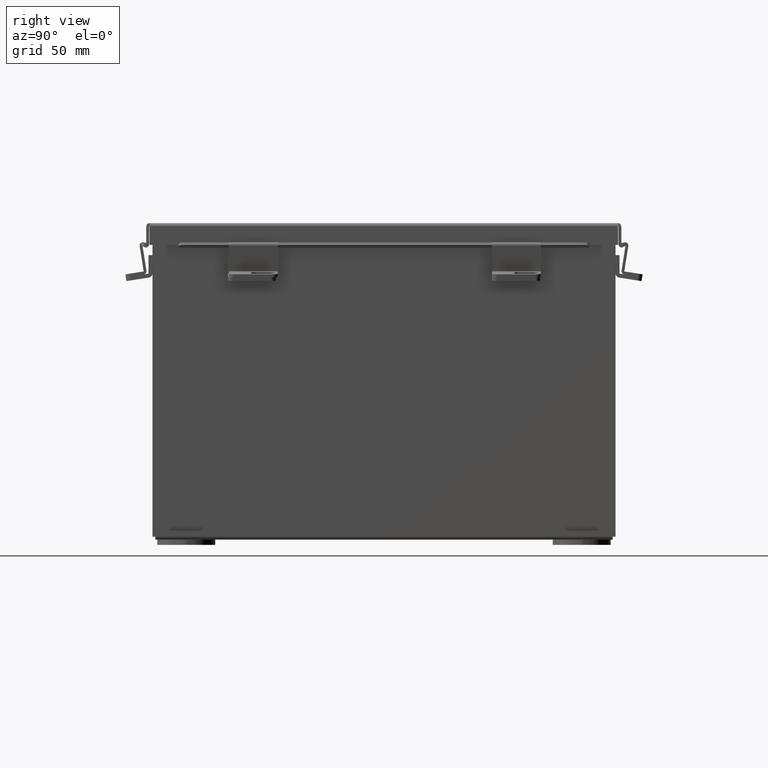
[diagram: clean part render]
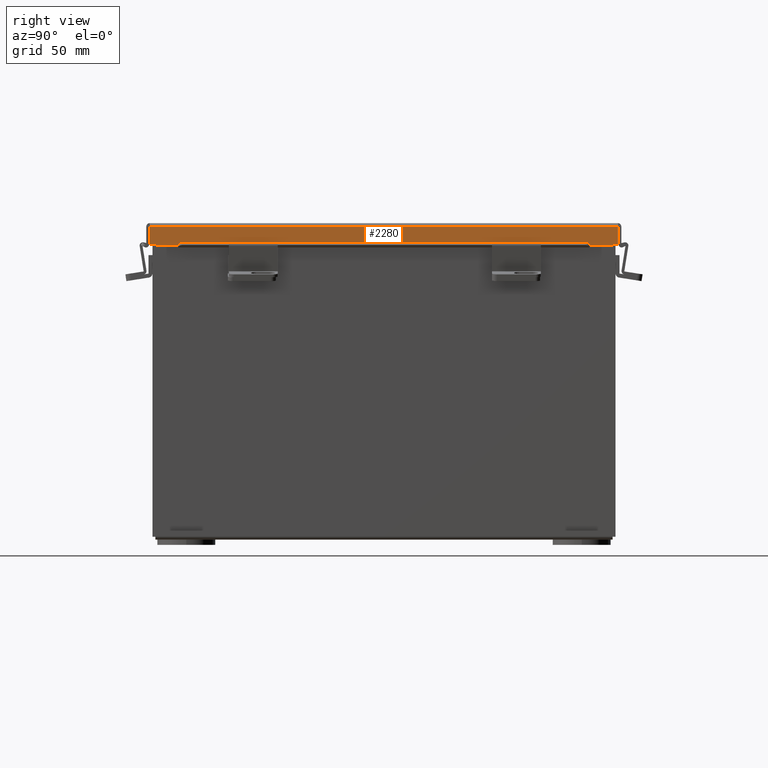
[diagram: same view with one face highlighted and labeled with its STEP entity id]
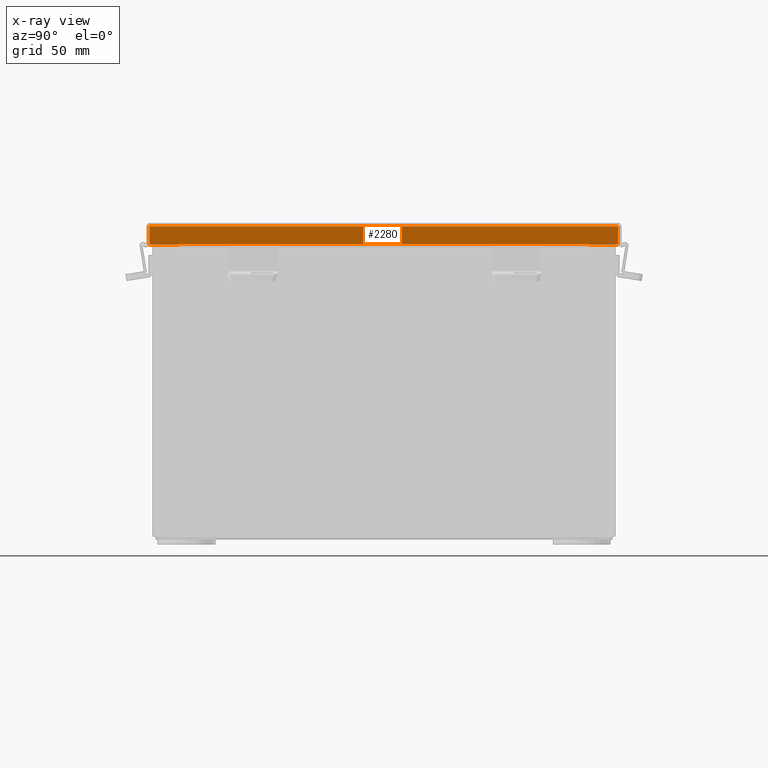
[diagram: x-ray of the same camera — body ghosted, the highlighted face saturated]
A machine part, right view. The second image highlights one B-rep face of the part: STEP entity #2280.
The next image is the same camera in x-ray: the body ghosted, the highlighted face saturated — about 0% of this face is hidden behind the body in this view.
In plain terms, the highlighted planar face has unit normal (-1, 0, -0).
Its self-contained STEP definition (entity closure, byte-faithful):
#276 = VECTOR ( 'NONE', #2500, 39.37007874015748100 ) ;
#544 = ORIENTED_EDGE ( 'NONE', *, *, #10643, .F. ) ;
#579 = ORIENTED_EDGE ( 'NONE', *, *, #3419, .T. ) ;
#637 = CARTESIAN_POINT ( 'NONE',  ( -4.156250000000024000, 5.324478932188134700, 0.4717115427318799800 ) ) ;
#868 = VECTOR ( 'NONE', #9737, 39.37007874015748100 ) ;
#922 = CARTESIAN_POINT ( 'NONE',  ( -4.156250000000023100, 5.324478932188134700, 0.4873000000000000100 ) ) ;
#1044 = DIRECTION ( 'NONE',  ( -1.102734587254376400E-030, 1.000000000000000000, -7.543482406175925400E-030 ) ) ;
#1649 = LINE ( 'NONE', #11438, #15196 ) ;
#1718 = CARTESIAN_POINT ( 'NONE',  ( -4.156250000000023100, 5.324478932188133000, 0.4717115427318799800 ) ) ;
#2280 = ADVANCED_FACE ( 'NONE', ( #14459 ), #9787, .F. ) ;
#2324 = LINE ( 'NONE', #13717, #8433 ) ;
#2500 = DIRECTION ( 'NONE',  ( -1.183291357831513000E-030, -7.617438116040364400E-030, 1.000000000000000000 ) ) ;
#2511 = CARTESIAN_POINT ( 'NONE',  ( -4.156250000000023100, -6.074478932188137400, 0.4873000000000000100 ) ) ;
#3273 = ORIENTED_EDGE ( 'NONE', *, *, #4109, .F. ) ;
#3360 = EDGE_CURVE ( 'NONE', #13347, #14325, #6181, .T. ) ;
#3419 = EDGE_CURVE ( 'NONE', #15134, #8571, #8279, .T. ) ;
#3478 = VECTOR ( 'NONE', #10448, 39.37007874015748100 ) ;
#3496 = CARTESIAN_POINT ( 'NONE',  ( -4.156250000000023100, 0.0000000000000000000, 0.4873000000000000100 ) ) ;
#4109 = EDGE_CURVE ( 'NONE', #15501, #7817, #9226, .T. ) ;
#4117 = ORIENTED_EDGE ( 'NONE', *, *, #11650, .T. ) ;
#4491 = LINE ( 'NONE', #10921, #868 ) ;
#4648 = VECTOR ( 'NONE', #8112, 39.37007874015748100 ) ;
#5142 = DIRECTION ( 'NONE',  ( 3.363654414526080900E-015, 7.617438116040365800E-030, -1.000000000000000000 ) ) ;
#5253 = LINE ( 'NONE', #3496, #8119 ) ;
#5665 = DIRECTION ( 'NONE',  ( -1.102734587254376400E-030, 1.000000000000000000, -7.543482406175925400E-030 ) ) ;
#5742 = ORIENTED_EDGE ( 'NONE', *, *, #11724, .F. ) ;
#5998 = LINE ( 'NONE', #9829, #276 ) ;
#6181 = LINE ( 'NONE', #14568, #9059 ) ;
#6676 = DIRECTION ( 'NONE',  ( 1.000000000000000000, -8.500126503461304400E-031, 3.363654414526080900E-015 ) ) ;
#7703 = CARTESIAN_POINT ( 'NONE',  ( -4.156250000000021300, 6.074478932188134700, 0.01300000000000010700 ) ) ;
#7817 = VERTEX_POINT ( 'NONE', #14299 ) ;
#8049 = EDGE_CURVE ( 'NONE', #7817, #12084, #5998, .T. ) ;
#8112 = DIRECTION ( 'NONE',  ( -3.363654414526080900E-015, -7.617438116040364400E-030, 1.000000000000000000 ) ) ;
#8119 = VECTOR ( 'NONE', #1044, 39.37007874015748100 ) ;
#8279 = LINE ( 'NONE', #12318, #4648 ) ;
#8414 = EDGE_LOOP ( 'NONE', ( #544, #9908, #10225, #5742, #579, #4117, #9176, #3273 ) ) ;
#8433 = VECTOR ( 'NONE', #10071, 39.37007874015748100 ) ;
#8571 = VERTEX_POINT ( 'NONE', #2511 ) ;
#9059 = VECTOR ( 'NONE', #5665, 39.37007874015748100 ) ;
#9061 = AXIS2_PLACEMENT_3D ( 'NONE', #10913, #6676, #5142 ) ;
#9082 = EDGE_CURVE ( 'NONE', #15446, #14325, #2324, .T. ) ;
#9176 = ORIENTED_EDGE ( 'NONE', *, *, #8049, .F. ) ;
#9226 = LINE ( 'NONE', #637, #3478 ) ;
#9737 = DIRECTION ( 'NONE',  ( -7.504135740648840900E-031, 1.000000000000000000, -4.437519583617875000E-017 ) ) ;
#9787 = PLANE ( 'NONE',  #9061 ) ;
#9829 = CARTESIAN_POINT ( 'NONE',  ( -4.156250000000024000, -5.324478932188136500, 0.4717115427318799800 ) ) ;
#9908 = ORIENTED_EDGE ( 'NONE', *, *, #3360, .T. ) ;
#10071 = DIRECTION ( 'NONE',  ( -3.363654414526080900E-015, -7.617438116040364400E-030, 1.000000000000000000 ) ) ;
#10225 = ORIENTED_EDGE ( 'NONE', *, *, #9082, .F. ) ;
#10448 = DIRECTION ( 'NONE',  ( 1.102734587254376400E-030, -1.000000000000000000, 7.543482406175925400E-030 ) ) ;
#10643 = EDGE_CURVE ( 'NONE', #13347, #15501, #1649, .T. ) ;
#10913 = CARTESIAN_POINT ( 'NONE',  ( -4.156250000000021300, 0.0000000000000000000, -1.420560956705417000E-014 ) ) ;
#10921 = CARTESIAN_POINT ( 'NONE',  ( -4.156250000000021300, 6.156249999999997300, 0.01300000000000010700 ) ) ;
#11438 = CARTESIAN_POINT ( 'NONE',  ( -4.156250000000024000, 5.324478932188134700, 0.4873000000000000100 ) ) ;
#11650 = EDGE_CURVE ( 'NONE', #8571, #12084, #5253, .T. ) ;
#11724 = EDGE_CURVE ( 'NONE', #15134, #15446, #4491, .T. ) ;
#12084 = VERTEX_POINT ( 'NONE', #15236 ) ;
#12318 = CARTESIAN_POINT ( 'NONE',  ( -4.156250000000021300, -6.074478932188137400, -1.420560956705417000E-014 ) ) ;
#13275 = CARTESIAN_POINT ( 'NONE',  ( -4.156250000000021300, -6.074478932188137400, 0.01300000000000010700 ) ) ;
#13347 = VERTEX_POINT ( 'NONE', #922 ) ;
#13717 = CARTESIAN_POINT ( 'NONE',  ( -4.156250000000021300, 6.074478932188134700, 0.0000000000000000000 ) ) ;
#14299 = CARTESIAN_POINT ( 'NONE',  ( -4.156250000000023100, -5.324478932188136500, 0.4717115427318799800 ) ) ;
#14325 = VERTEX_POINT ( 'NONE', #14937 ) ;
#14459 = FACE_OUTER_BOUND ( 'NONE', #8414, .T. ) ;
#14568 = CARTESIAN_POINT ( 'NONE',  ( -4.156250000000023100, 0.0000000000000000000, 0.4873000000000000100 ) ) ;
#14937 = CARTESIAN_POINT ( 'NONE',  ( -4.156250000000023100, 6.074478932188134700, 0.4873000000000000100 ) ) ;
#15052 = DIRECTION ( 'NONE',  ( 3.504962610060539100E-014, -7.009925220121056800E-014, -1.000000000000000000 ) ) ;
#15134 = VERTEX_POINT ( 'NONE', #13275 ) ;
#15196 = VECTOR ( 'NONE', #15052, 39.37007874015748100 ) ;
#15236 = CARTESIAN_POINT ( 'NONE',  ( -4.156250000000023100, -5.324478932188137400, 0.4872999999999989000 ) ) ;
#15446 = VERTEX_POINT ( 'NONE', #7703 ) ;
#15501 = VERTEX_POINT ( 'NONE', #1718 ) ;